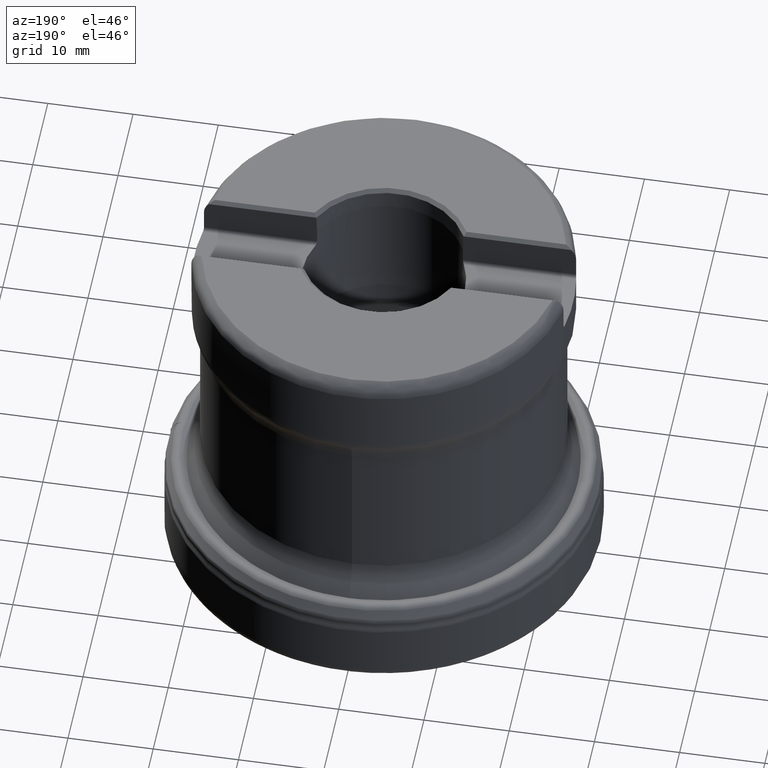
[diagram: clean part render]
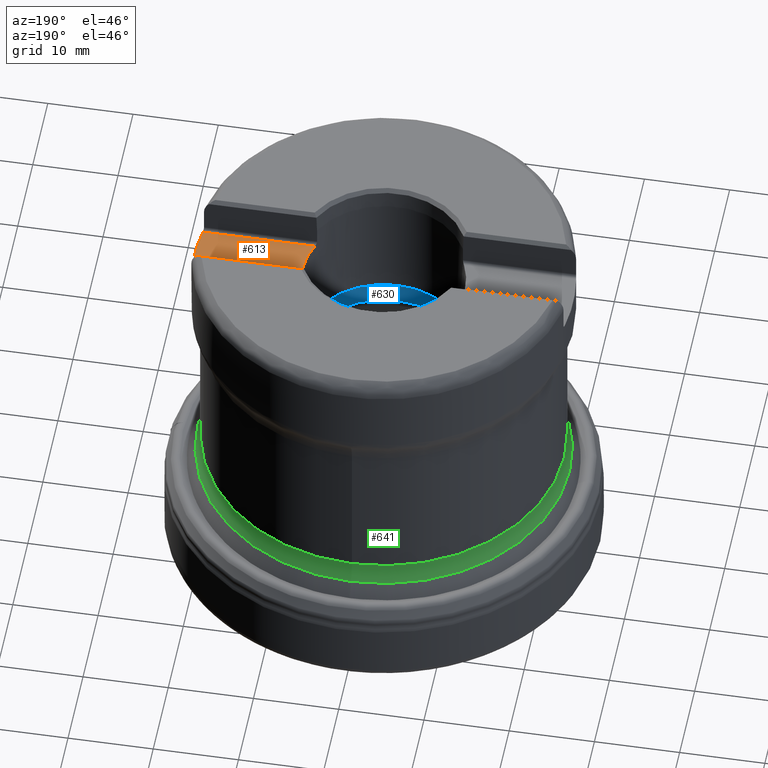
[diagram: same view with three faces highlighted in distinct colors, each labeled with its STEP entity id]
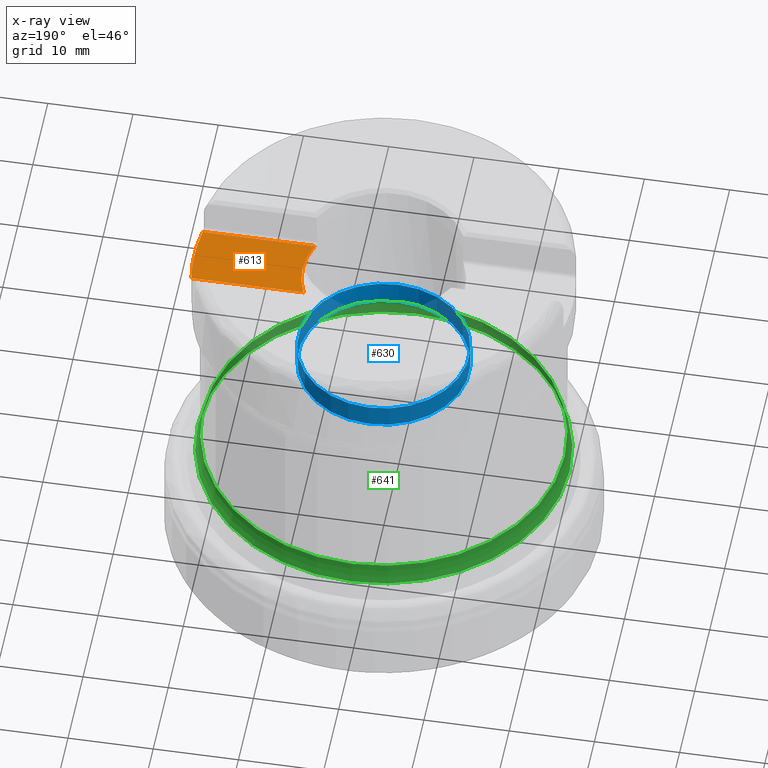
[diagram: x-ray of the same camera — body ghosted, the three highlighted faces saturated]
A machine part, auxiliary view with three faces highlighted in distinct colors.
The next image is the same camera in x-ray (body ghosted, the three faces saturated) — at least one of them is partly hidden behind the body in this view.
Their STEP definitions:

[orange] entity #613 — the highlighted planar face has unit normal (0, 0, 1).
#395=LINE('',#4499,#458);
#396=LINE('',#4503,#459);
#458=VECTOR('',#3212,1.);
#459=VECTOR('',#3215,1.);
#519=PLANE('',#2860);
#613=ADVANCED_FACE('',(#800),#519,.T.);
#800=FACE_OUTER_BOUND('',#918,.T.);
#918=EDGE_LOOP('',(#1348,#1349,#1350,#1351));
#1148=CIRCLE('',#2836,22.225);
#1161=CIRCLE('',#2859,9.525);
#1348=ORIENTED_EDGE('',*,*,#2294,.T.);
#1349=ORIENTED_EDGE('',*,*,#2316,.T.);
#1350=ORIENTED_EDGE('',*,*,#2317,.T.);
#1351=ORIENTED_EDGE('',*,*,#2318,.T.);
#2028=VERTEX_POINT('',#4287);
#2029=VERTEX_POINT('',#4289);
#2045=VERTEX_POINT('',#4500);
#2046=VERTEX_POINT('',#4502);
#2294=EDGE_CURVE('',#2029,#2028,#1148,.T.);
#2316=EDGE_CURVE('',#2028,#2045,#395,.T.);
#2317=EDGE_CURVE('',#2045,#2046,#1161,.T.);
#2318=EDGE_CURVE('',#2046,#2029,#396,.T.);
#2836=AXIS2_PLACEMENT_3D('',#4288,#3165,#3166);
#2859=AXIS2_PLACEMENT_3D('',#4501,#3213,#3214);
#2860=AXIS2_PLACEMENT_3D('',#4504,#3216,#3217);
#3165=DIRECTION('',(0.,1.17145536458252E-15,1.));
#3166=DIRECTION('',(0.,-1.,1.24884479710366E-15));
#3212=DIRECTION('',(-1.,0.,0.));
#3213=DIRECTION('',(0.,-1.17145536458252E-15,-1.));
#3214=DIRECTION('',(0.,-1.,1.45698559662094E-15));
#3215=DIRECTION('',(1.,0.,0.));
#3216=DIRECTION('',(0.,1.17145536458252E-15,1.));
#3217=DIRECTION('',(0.,-1.,1.17267306976032E-15));
#4287=CARTESIAN_POINT('',(21.9020546981328,3.77500000000005,39.7));
#4288=CARTESIAN_POINT('',(0.,4.65067779739262E-14,39.7));
#4289=CARTESIAN_POINT('',(21.9020546981328,-3.77499999999995,39.7));
#4499=CARTESIAN_POINT('',(27.,3.77500000000005,39.7));
#4500=CARTESIAN_POINT('',(8.74499857061166,3.77500000000005,39.7));
#4501=CARTESIAN_POINT('',(0.,4.65067779739262E-14,39.7));
#4502=CARTESIAN_POINT('',(8.74499857061166,-3.77499999999995,39.7));
#4503=CARTESIAN_POINT('',(27.,-3.77499999999995,39.7));
#4504=CARTESIAN_POINT('',(27.,-4.17499999999995,39.7));

[blue] entity #630 — the highlighted cylindrical surface (bore or boss wall) has radius 10.025 mm, axis along (0, -0, -1).
#209=CYLINDRICAL_SURFACE('',#2900,10.025);
#263=FACE_BOUND('',#940,.T.);
#264=FACE_BOUND('',#941,.T.);
#630=ADVANCED_FACE('',(#263,#264),#209,.F.);
#940=EDGE_LOOP('',(#1438));
#941=EDGE_LOOP('',(#1439));
#1178=CIRCLE('',#2898,10.025);
#1179=CIRCLE('',#2899,10.025);
#1438=ORIENTED_EDGE('',*,*,#2358,.T.);
#1439=ORIENTED_EDGE('',*,*,#2359,.T.);
#2075=VERTEX_POINT('',#4679);
#2076=VERTEX_POINT('',#4681);
#2358=EDGE_CURVE('',#2075,#2075,#1178,.T.);
#2359=EDGE_CURVE('',#2076,#2076,#1179,.T.);
#2898=AXIS2_PLACEMENT_3D('',#4678,#3302,#3303);
#2899=AXIS2_PLACEMENT_3D('',#4680,#3304,#3305);
#2900=AXIS2_PLACEMENT_3D('',#4682,#3306,#3307);
#3302=DIRECTION('',(0.,1.17145536458252E-15,1.));
#3303=DIRECTION('',(0.,-1.,1.03823848936268E-15));
#3304=DIRECTION('',(0.,-1.17145536458252E-15,-1.));
#3305=DIRECTION('',(0.,1.,-1.03823848936268E-15));
#3306=DIRECTION('',(0.,-1.17145536458252E-15,-1.));
#3307=DIRECTION('',(0.,1.,-1.3843179858169E-15));
#4678=CARTESIAN_POINT('',(0.,3.33864778906019E-14,28.5));
#4679=CARTESIAN_POINT('',(0.,-10.025,28.5));
#4680=CARTESIAN_POINT('',(0.,3.02235484062291E-14,25.8));
#4681=CARTESIAN_POINT('',(0.,10.025,25.8));
#4682=CARTESIAN_POINT('',(0.,5.23054820286097E-14,44.65));

[green] entity #641 — the highlighted toroidal blend (fillet) surface has major radius 26.225 mm and minor (blend) radius 5 mm.
#283=FACE_BOUND('',#961,.T.);
#284=FACE_BOUND('',#962,.T.);
#641=ADVANCED_FACE('',(#283,#284),#774,.F.);
#774=TOROIDAL_SURFACE('',#2913,26.225,5.);
#961=EDGE_LOOP('',(#1480));
#962=EDGE_LOOP('',(#1481));
#1149=CIRCLE('',#2838,21.225);
#1151=CIRCLE('',#2841,21.8135078518561);
#1480=ORIENTED_EDGE('',*,*,#2297,.F.);
#1481=ORIENTED_EDGE('',*,*,#2299,.F.);
#2031=VERTEX_POINT('',#4310);
#2033=VERTEX_POINT('',#4315);
#2297=EDGE_CURVE('',#2031,#2031,#1149,.T.);
#2299=EDGE_CURVE('',#2033,#2033,#1151,.T.);
#2838=AXIS2_PLACEMENT_3D('',#4309,#3170,#3171);
#2841=AXIS2_PLACEMENT_3D('',#4314,#3176,#3177);
#2913=AXIS2_PLACEMENT_3D('',#4940,#3332,#3333);
#3170=DIRECTION('',(0.,1.17145536458252E-15,1.));
#3171=DIRECTION('',(0.,1.,-1.14422278745231E-15));
#3176=DIRECTION('',(0.,-1.17145536458252E-15,-1.));
#3177=DIRECTION('',(0.,1.,-1.19287793216798E-15));
#3332=DIRECTION('',(0.,-1.17145536458252E-15,-1.));
#3333=DIRECTION('',(0.,1.,-1.16666750986431E-15));
#4309=CARTESIAN_POINT('',(0.,1.63567110022422E-14,13.9627266191839));
#4310=CARTESIAN_POINT('',(0.,21.225,13.9627266191839));
#4314=CARTESIAN_POINT('',(0.,1.35997468547103E-14,11.6092744682226));
#4315=CARTESIAN_POINT('',(0.,21.8135078518561,11.6092744682226));
#4940=CARTESIAN_POINT('',(0.,1.63567110022422E-14,13.9627266191839));